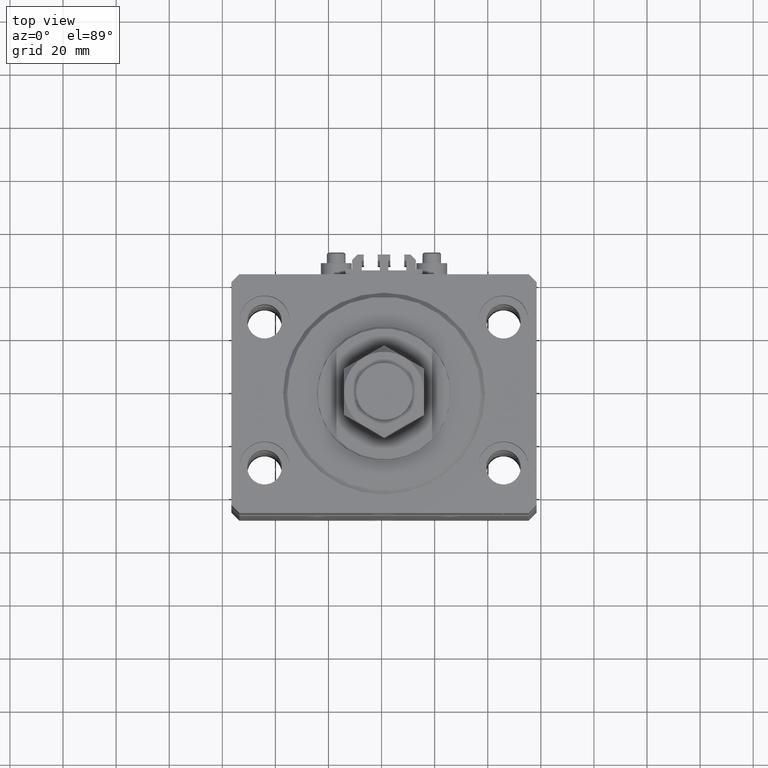
[diagram: clean part render]
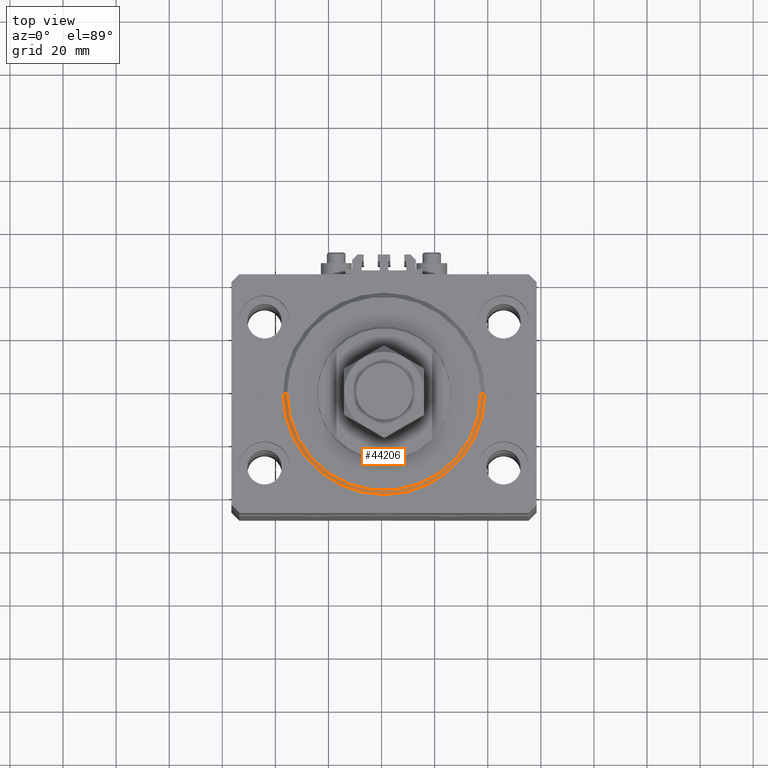
[diagram: same view with one face highlighted and labeled with its STEP entity id]
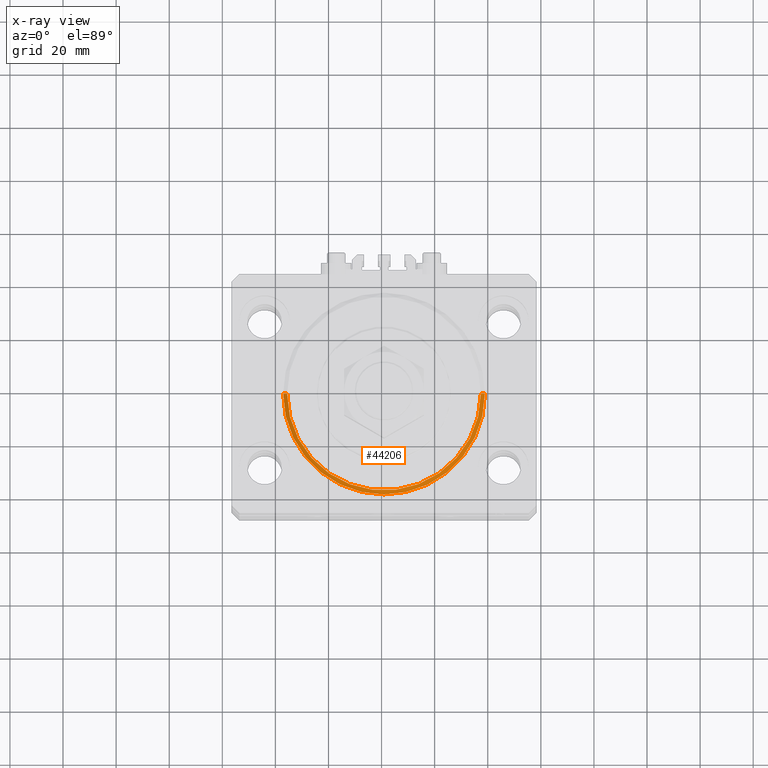
[diagram: x-ray of the same camera — body ghosted, the highlighted face saturated]
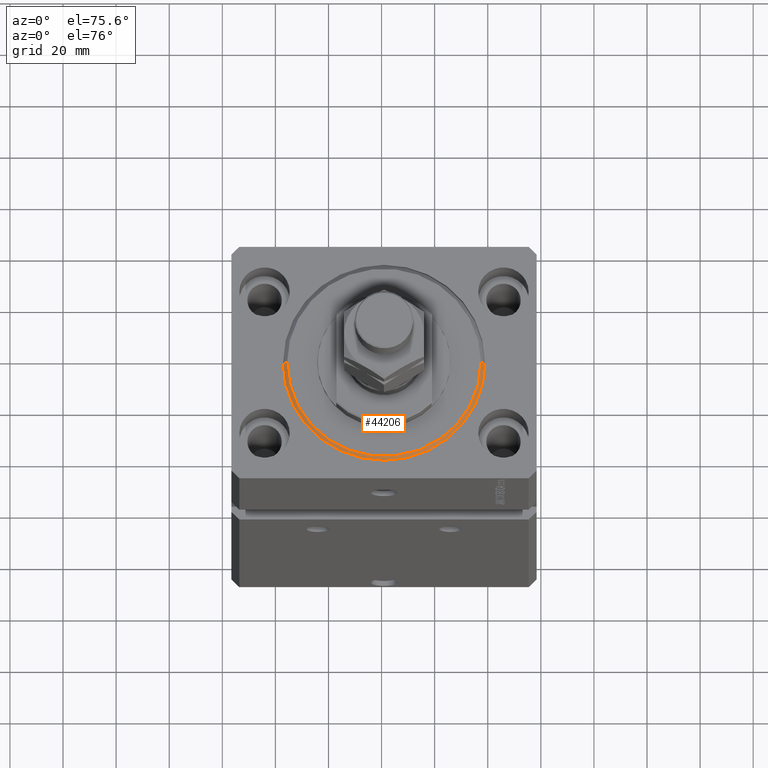
[diagram: same view with one face highlighted and labeled with its STEP entity id]
A machine part, top view. The second image highlights one B-rep face of the part: STEP entity #44206.
The next image is the same camera in x-ray: the body ghosted, the highlighted face saturated — about 0% of this face is hidden behind the body in this view.
A second angle (auxiliary view) of the same face is appended — the face is thin or edge-on in the first view.
In plain terms, the highlighted conical surface has half-angle 45 deg.
Its self-contained STEP definition (entity closure, byte-faithful):
#150 = VERTEX_POINT ( 'NONE', #38549 ) ;
#4416 = CARTESIAN_POINT ( 'NONE',  ( 38.00000000000000000, 0.000000000000000000, 1.499999999999994449 ) ) ;
#4917 = EDGE_CURVE ( 'NONE', #150, #34559, #14180, .T. ) ;
#7808 = LINE ( 'NONE', #4416, #36454 ) ;
#8272 = CIRCLE ( 'NONE', #13258, 36.50000000000000000 ) ;
#8403 = EDGE_CURVE ( 'NONE', #38736, #150, #46900, .T. ) ;
#8649 = EDGE_LOOP ( 'NONE', ( #22483, #13274, #26507, #17410 ) ) ;
#9093 = DIRECTION ( 'NONE',  ( -0.000000000000000000, -0.000000000000000000, -1.000000000000000000 ) ) ;
#9709 = AXIS2_PLACEMENT_3D ( 'NONE', #48616, #48360, #37179 ) ;
#11242 = VERTEX_POINT ( 'NONE', #15907 ) ;
#12696 = DIRECTION ( 'NONE',  ( -0.000000000000000000, -0.000000000000000000, 1.000000000000000000 ) ) ;
#12959 = CARTESIAN_POINT ( 'NONE',  ( 38.00000000000000000, 4.653657836759941941E-15, 1.499999999999994449 ) ) ;
#13258 = AXIS2_PLACEMENT_3D ( 'NONE', #37712, #9093, #29660 ) ;
#13274 = ORIENTED_EDGE ( 'NONE', *, *, #20635, .F. ) ;
#13332 = AXIS2_PLACEMENT_3D ( 'NONE', #48341, #12696, #34532 ) ;
#14180 = CIRCLE ( 'NONE', #13332, 38.00000000000000000 ) ;
#15907 = CARTESIAN_POINT ( 'NONE',  ( 36.50000000000000000, 0.000000000000000000, 0.000000000000000000 ) ) ;
#16033 = EDGE_CURVE ( 'NONE', #11242, #34559, #7808, .T. ) ;
#17410 = ORIENTED_EDGE ( 'NONE', *, *, #4917, .F. ) ;
#20126 = DIRECTION ( 'NONE',  ( -0.7071067811865491270, 8.659560562354953812E-17, 0.7071067811865459074 ) ) ;
#20635 = EDGE_CURVE ( 'NONE', #11242, #38736, #8272, .T. ) ;
#21216 = VECTOR ( 'NONE', #20126, 1000.000000000000114 ) ;
#22483 = ORIENTED_EDGE ( 'NONE', *, *, #8403, .F. ) ;
#23814 = CARTESIAN_POINT ( 'NONE',  ( -36.50000000000000000, 4.561809326823889791E-15, 0.000000000000000000 ) ) ;
#26507 = ORIENTED_EDGE ( 'NONE', *, *, #16033, .T. ) ;
#29660 = DIRECTION ( 'NONE',  ( 1.000000000000000000, 0.000000000000000000, 0.000000000000000000 ) ) ;
#32031 = DIRECTION ( 'NONE',  ( 0.7071067811865491270, 0.000000000000000000, 0.7071067811865459074 ) ) ;
#32988 = CONICAL_SURFACE ( 'NONE', #9709, 38.00000000000000000, 0.7853981633974506105 ) ;
#34532 = DIRECTION ( 'NONE',  ( 1.000000000000000000, 0.000000000000000000, 0.000000000000000000 ) ) ;
#34559 = VERTEX_POINT ( 'NONE', #12959 ) ;
#36454 = VECTOR ( 'NONE', #32031, 1000.000000000000114 ) ;
#37179 = DIRECTION ( 'NONE',  ( 1.000000000000000000, 0.000000000000000000, 0.000000000000000000 ) ) ;
#37429 = FACE_OUTER_BOUND ( 'NONE', #8649, .T. ) ;
#37712 = CARTESIAN_POINT ( 'NONE',  ( 0.000000000000000000, 0.000000000000000000, 0.000000000000000000 ) ) ;
#38549 = CARTESIAN_POINT ( 'NONE',  ( -38.00000000000000000, 0.000000000000000000, 1.499999999999994449 ) ) ;
#38736 = VERTEX_POINT ( 'NONE', #23814 ) ;
#39117 = CARTESIAN_POINT ( 'NONE',  ( -38.00000000000000000, 4.653657836759941941E-15, 1.499999999999994449 ) ) ;
#44206 = ADVANCED_FACE ( 'NONE', ( #37429 ), #32988, .T. ) ;
#46900 = LINE ( 'NONE', #39117, #21216 ) ;
#48341 = CARTESIAN_POINT ( 'NONE',  ( 0.000000000000000000, 0.000000000000000000, 1.499999999999994449 ) ) ;
#48360 = DIRECTION ( 'NONE',  ( -0.000000000000000000, -0.000000000000000000, 1.000000000000000000 ) ) ;
#48616 = CARTESIAN_POINT ( 'NONE',  ( 0.000000000000000000, 0.000000000000000000, 1.499999999999994449 ) ) ;